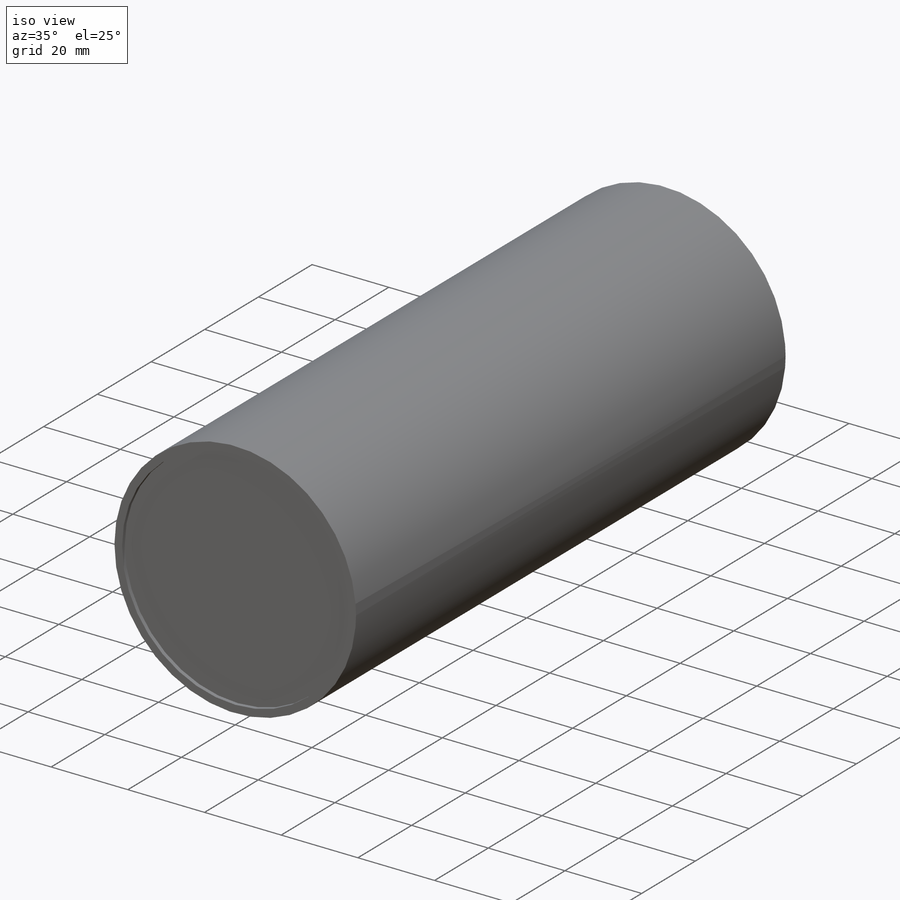
[diagram: iso view]
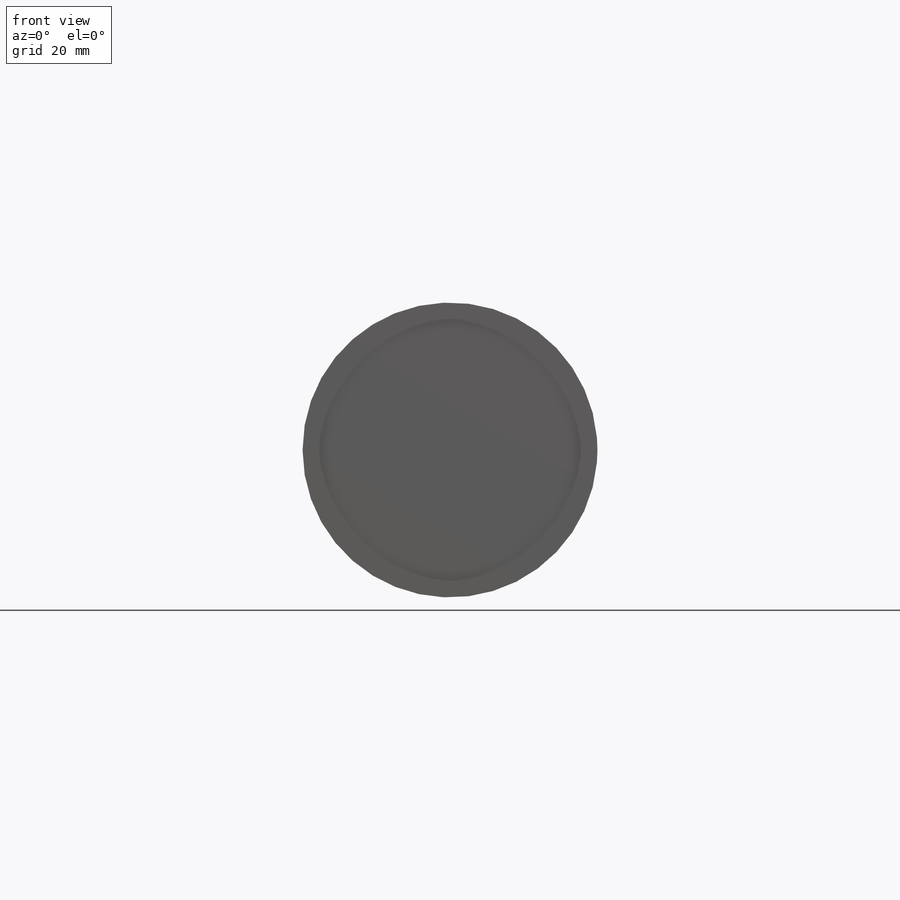
[diagram: front view]
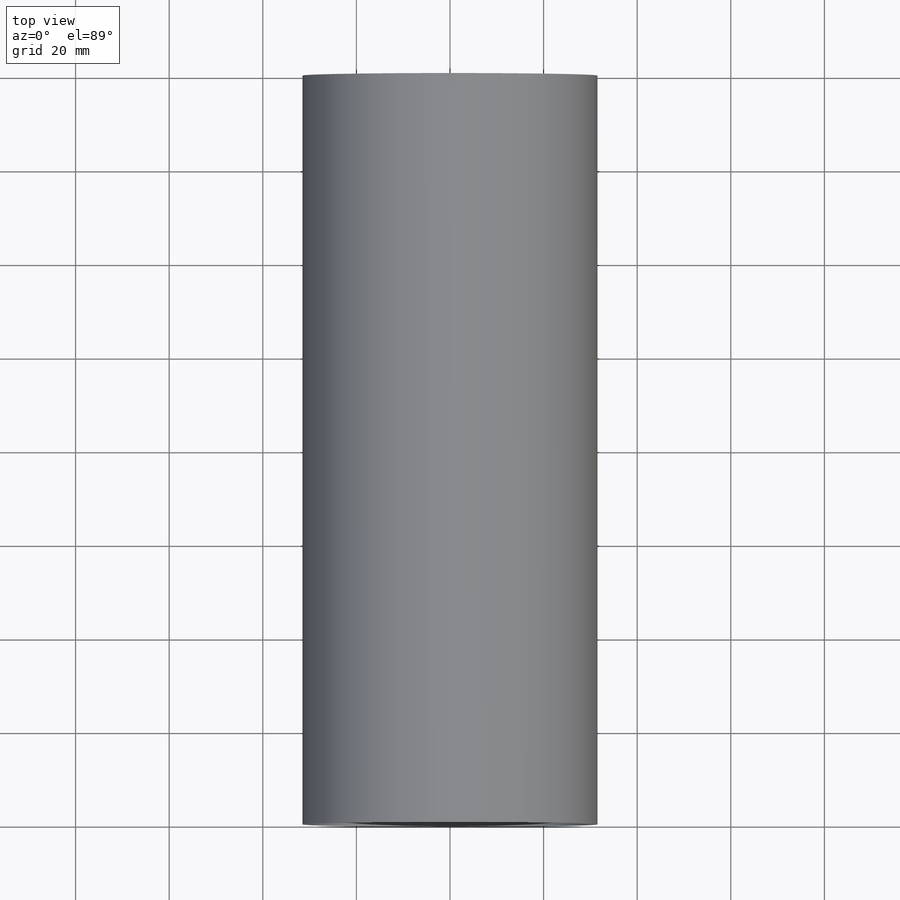
[diagram: top view]
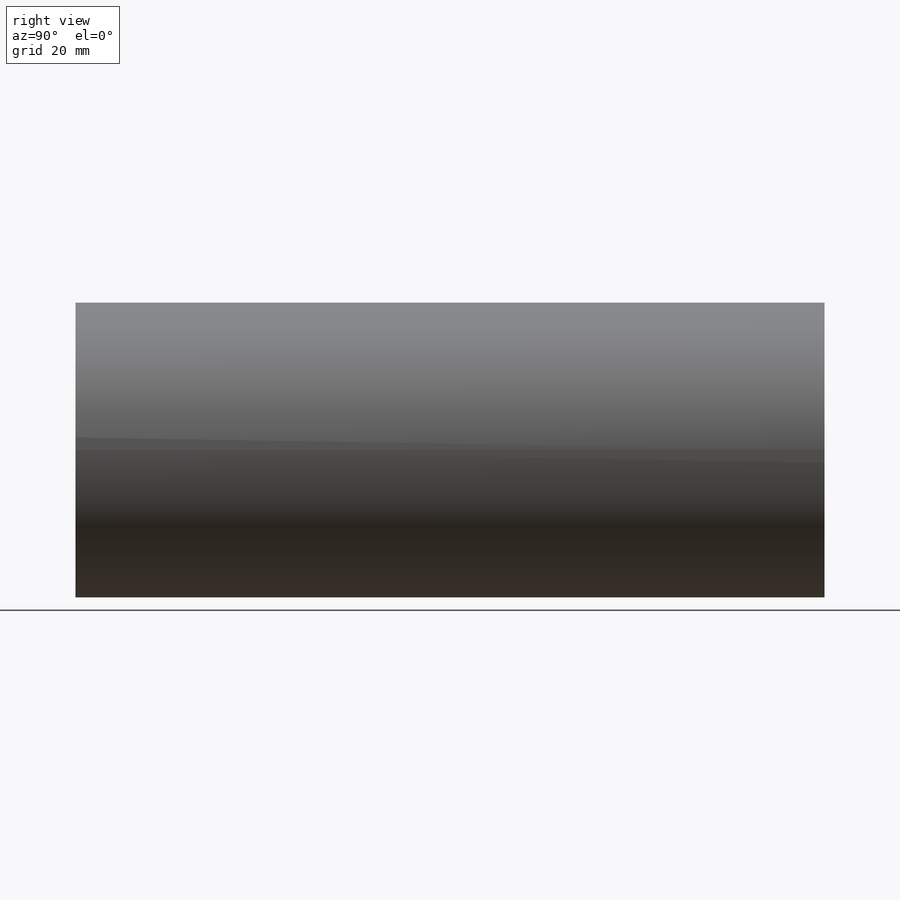
[diagram: right view]
SOLIDWORKS PART (.sldprt)
format: sldprt  version: not decoded by parser v0  size: 181,760 bytes
history: native  units: mm
features: plane x5, sketch x3, extrude x3, material x1 (+10 scaffold rows collapsed)
feature tree (22):
  scaffold x10  (default folders/planes/origin — collapsed)
  material  "Matériau <non spécifié>"
  plane  "Plan de face"
  plane  "Plan de dessus"
  plane  "Plan de droite"
  sketch  "Esquisse1"  dims[D1=63.0mm D2=2.0mm]
  extrude  "Boss.-Extru.1"  Depth=160mm
  plane  "Plan1"  Offset=1mm
  sketch  "Esquisse2"  dims[D1=60.0mm]
  extrude  "Boss.-Extru.2"  Depth=5mm
  plane  "Plan2"  Offset=1mm
  sketch  "Esquisse3"  dims[D1=60.0mm]
  extrude  "Boss.-Extru.3"  Depth=5mm
decode coverage: 6 of 6 modeling features carry decoded parameters
note: suppression state not decoded; provenance and decode notes live in map.json
